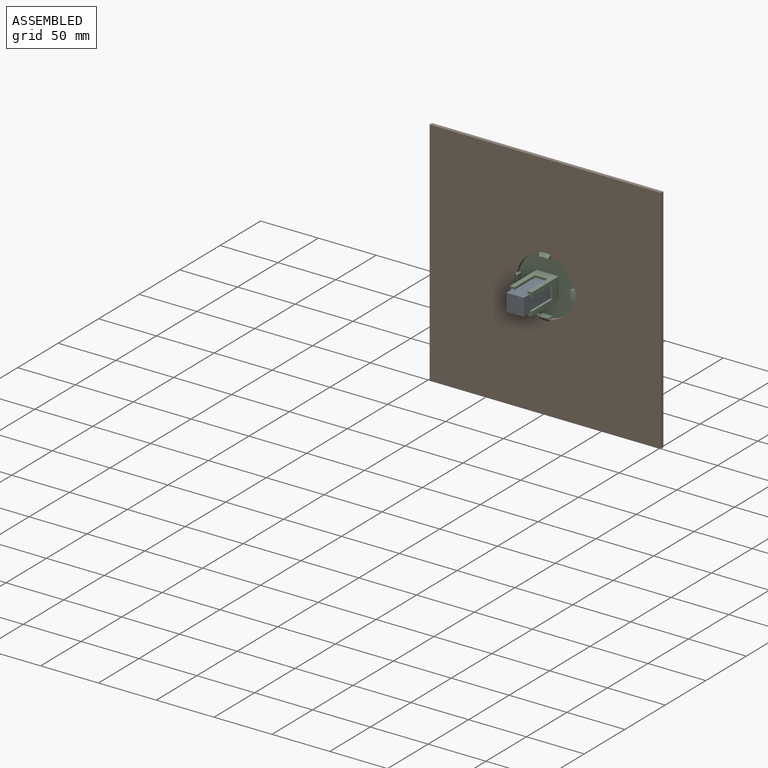
[diagram: assembled view]
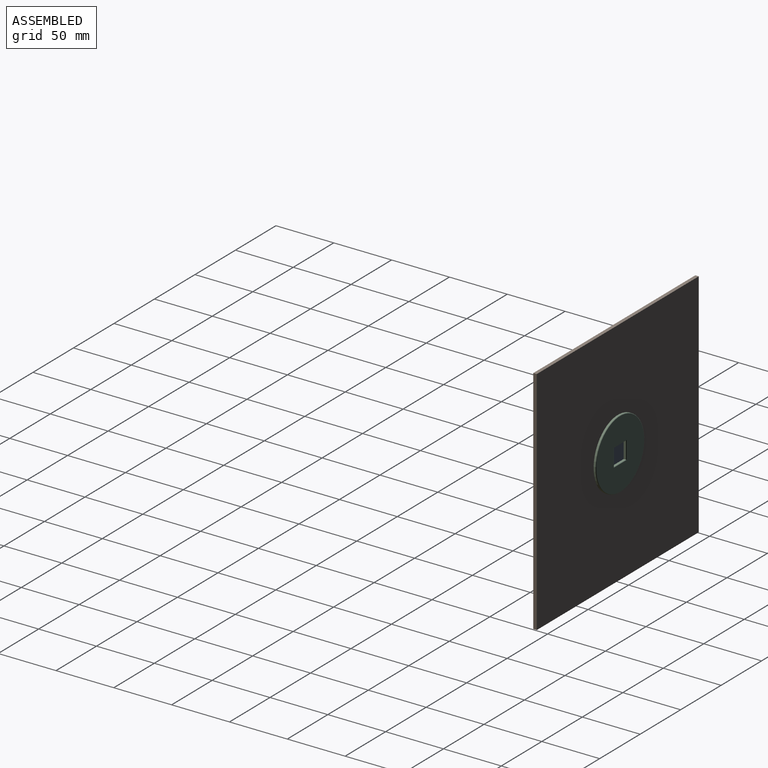
[diagram: assembled view, second angle]
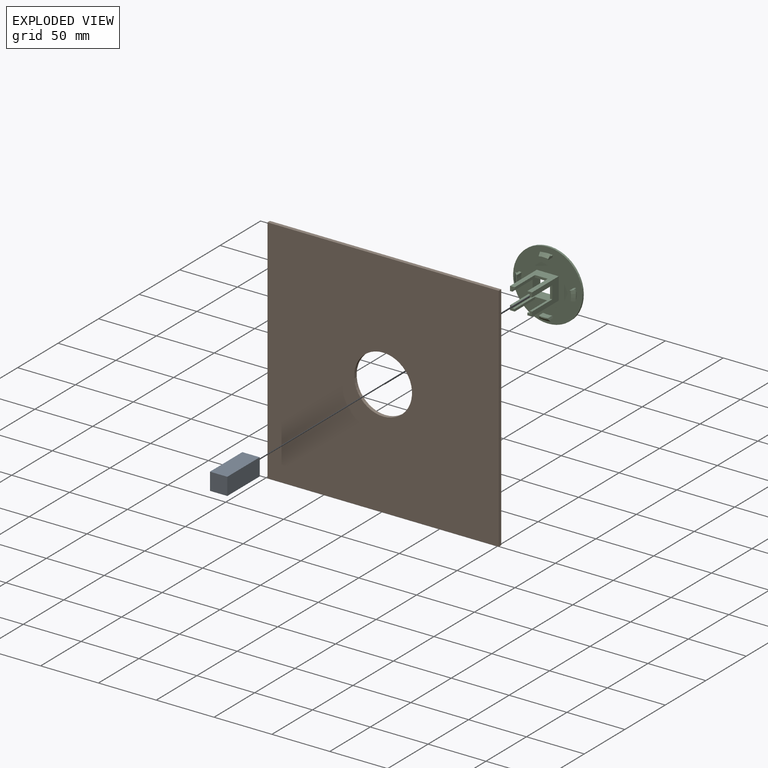
[diagram: exploded view]
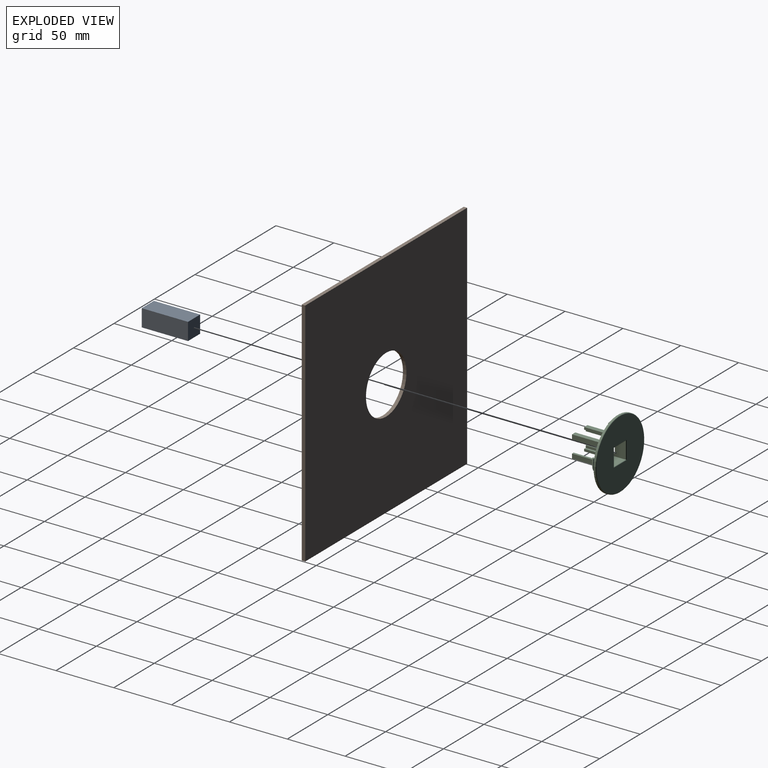
[diagram: exploded view, second angle]
ASSEMBLY  parts=3 mates=2
PART A: 6 faces, bbox 15x40x15 mm
  f0: plane 40x15mm, normal (0,0,-1), area 600mm2, adj f1,f3,f4,f5
  f1: plane 40x15mm, normal (1,0,0), area 600mm2, adj f0,f2,f4,f5
  f2: plane 40x15mm, normal (0,0,1), area 600mm2, adj f1,f3,f4,f5
  f3: plane 40x15mm, normal (-1,0,0), area 600mm2, adj f0,f2,f4,f5
  f4: plane 15x15mm, normal (0,-1,0), area 225mm2, adj f0,f1,f2,f3
  f5: plane 15x15mm, normal (0,1,0), area 225mm2, adj f0,f1,f2,f3
PART B: 7 faces, bbox 200x3x200 mm
  f0: plane 200x3mm, normal (1,0,0), area 600mm2, adj f1,f3,f5,f6
  f1: plane 200x3mm, normal (0,0,1), area 600mm2, adj f0,f2,f5,f6
  f2: plane 200x3mm, normal (-1,0,0), area 600mm2, adj f1,f3,f5,f6
  f3: plane 200x3mm, normal (0,0,-1), area 600mm2, adj f0,f2,f5,f6
  f4: cylinder r=25mm len=50mm, axis (0,1,0), area 471.2mm2, adj f5,f6
  f5: plane 200x200mm, normal (0,-1,0), area 38036.5mm2, adj f0,f1,f2,f3,f4
  f6: plane 200x200mm, normal (0,1,0), area 38036.5mm2, adj f0,f1,f2,f3,f4
PART C: 60 faces, bbox 64.9x35x64.9 mm
  f0: plane 60x60mm, normal (0,-1,0), area 2399.4mm2, adj f2,f7,f8,f11,f18,f35,f36,f37
  f1: plane 59x59mm, normal (0,1,0), area 2478mm2, adj f27,f28,f29,f30,f31
  f2: cylinder r=30mm len=60mm, axis (0,1,0), area 282.7mm2, adj f0,f31
  f3: plane 25x2mm, normal (-1,0,0), area 50mm2, adj f4,f8,f9,f23
  f4: plane 34.5x15mm, normal (0,0,-1), area 242.5mm2, adj f3,f5,f9,f16,f17,f19,f23,f30
  f5: plane 34.5x15mm, normal (-1,0,0), area 242.5mm2, adj f4,f6,f9,f12,f13,f14,f24,f29
  f6: plane 25x2mm, normal (0,0,-1), area 50mm2, adj f5,f7,f9,f24
  f7: plane 33x19mm, normal (1,0,0), area 352mm2, adj f0,f6,f8,f9,f11,f12,f14,f24
  f8: plane 33x19mm, normal (0,0,1), area 352mm2, adj f0,f3,f7,f9,f17,f18,f19,f23
  f9: plane 4x4mm, normal (0,-1,0), area 12mm2, adj f3,f4,f5,f6,f7,f8
  f10: plane 25x2mm, normal (-1,0,0), area 50mm2, adj f11,f13,f14,f25
  f11: plane 33x19mm, normal (0,0,-1), area 352mm2, adj f0,f7,f10,f14,f18,f21,f22,f25
  f12: plane 25x2mm, normal (0,0,1), area 50mm2, adj f5,f7,f14,f24
  f13: plane 34.5x15mm, normal (0,0,1), area 242.5mm2, adj f5,f10,f14,f16,f21,f22,f25,f27
  f14: plane 4x4mm, normal (0,-1,0), area 12mm2, adj f5,f7,f10,f11,f12,f13
  f15: plane 25x2mm, normal (0,0,-1), area 50mm2, adj f16,f18,f19,f26
  f16: plane 34.5x15mm, normal (1,0,0), area 242.5mm2, adj f4,f13,f15,f19,f20,f22,f26,f28
  f17: plane 25x2mm, normal (1,0,0), area 50mm2, adj f4,f8,f19,f23
  f18: plane 33x19mm, normal (-1,0,0), area 352mm2, adj f0,f8,f11,f15,f19,f20,f22,f26
  f19: plane 4x4mm, normal (0,-1,0), area 12mm2, adj f4,f8,f15,f16,f17,f18
  f20: plane 25x2mm, normal (0,0,1), area 50mm2, adj f16,f18,f22,f26
  f21: plane 25x2mm, normal (1,0,0), area 50mm2, adj f11,f13,f22,f25
  f22: plane 4x4mm, normal (0,-1,0), area 12mm2, adj f11,f13,f16,f18,f20,f21
  f23: plane 11x2mm, normal (0,-1,0), area 22mm2, adj f3,f4,f8,f17
  f24: plane 11x2mm, normal (0,-1,0), area 22mm2, adj f5,f6,f7,f12
  f25: plane 11x2mm, normal (0,-1,0), area 22mm2, adj f10,f11,f13,f21
  f26: plane 11x2mm, normal (0,-1,0), area 22mm2, adj f15,f16,f18,f20
  f27: cylinder r=0.5mm len=16mm, axis (-1,0,0), area 12.1mm2, adj f1,f13,f28,f29
  f28: cylinder r=0.5mm len=16mm, axis (0,0,1), area 12.1mm2, adj f1,f16,f27,f30
  f29: cylinder r=0.5mm len=16mm, axis (0,0,-1), area 12.1mm2, adj f1,f5,f27,f30
  f30: cylinder r=0.5mm len=16mm, axis (1,0,0), area 12.1mm2, adj f1,f4,f28,f29
  f31: torus R=29.5mm, axis (0,-1,0), area 147.1mm2, adj f1,f2
  f32: plane 8.34x1.35mm, normal (0,-1,0), area 8.2mm2, adj f33,f36,f37,f38
  f33: cone r=24mm half-angle=45deg, axis (0,1,0), area 31.2mm2, adj f32,f34,f37,f38
  f34: plane 9.2x1.88mm, normal (0,1,0), area 13.5mm2, adj f33,f35,f37,f38
  f35: cylinder r=25mm len=8.68mm, axis (0,-1,0), area 26.2mm2, adj f0,f34,f37,f38
  f36: cylinder r=23mm len=7.99mm, axis (0,-1,0), area 44.2mm2, adj f0,f32,f37,f38
  f37: plane 5.5x3.45mm, normal (-0.17,0,-0.98), area 11.6mm2, adj f0,f32,f33,f34,f35,f36
  f38: plane 5.5x3.45mm, normal (-0.17,0,0.98), area 11.6mm2, adj f0,f32,f33,f34,f35,f36
  f39: plane 8.34x1.35mm, normal (0,-1,0), area 8.2mm2, adj f40,f43,f44,f45
  f40: cone r=24mm half-angle=45deg, axis (0,1,0), area 31.2mm2, adj f39,f41,f44,f45
  f41: plane 9.2x1.88mm, normal (0,1,0), area 13.5mm2, adj f40,f42,f44,f45
  f42: cylinder r=25mm len=8.68mm, axis (0,-1,0), area 26.2mm2, adj f0,f41,f44,f45
  f43: cylinder r=23mm len=7.99mm, axis (0,-1,0), area 44.2mm2, adj f0,f39,f44,f45
  f44: plane 5.5x3.45mm, normal (-0.98,0,0.17), area 11.6mm2, adj f0,f39,f40,f41,f42,f43
  f45: plane 5.5x3.45mm, normal (0.98,0,0.17), area 11.6mm2, adj f0,f39,f40,f41,f42,f43
  f46: plane 8.34x1.35mm, normal (0,-1,0), area 8.2mm2, adj f47,f50,f51,f52
  f47: cone r=24mm half-angle=45deg, axis (0,1,0), area 31.2mm2, adj f46,f48,f51,f52
  f48: plane 9.2x1.88mm, normal (0,1,0), area 13.5mm2, adj f47,f49,f51,f52
  f49: cylinder r=25mm len=8.68mm, axis (0,-1,0), area 26.2mm2, adj f0,f48,f51,f52
  f50: cylinder r=23mm len=7.99mm, axis (0,-1,0), area 44.2mm2, adj f0,f46,f51,f52
  f51: plane 5.5x3.45mm, normal (0.17,0,0.98), area 11.6mm2, adj f0,f46,f47,f48,f49,f50
  f52: plane 5.5x3.45mm, normal (0.17,0,-0.98), area 11.6mm2, adj f0,f46,f47,f48,f49,f50
  f53: plane 8.34x1.35mm, normal (0,-1,0), area 8.2mm2, adj f54,f57,f58,f59
  f54: cone r=24mm half-angle=45deg, axis (0,1,0), area 31.2mm2, adj f53,f55,f58,f59
  f55: plane 9.2x1.88mm, normal (0,1,0), area 13.5mm2, adj f54,f56,f58,f59
  f56: cylinder r=25mm len=8.68mm, axis (0,-1,0), area 26.2mm2, adj f0,f55,f58,f59
  f57: cylinder r=23mm len=7.99mm, axis (0,-1,0), area 44.2mm2, adj f0,f53,f58,f59
  f58: plane 5.5x3.45mm, normal (0.98,0,-0.17), area 11.6mm2, adj f0,f53,f54,f55,f56,f57
  f59: plane 5.5x3.45mm, normal (-0.98,0,-0.17), area 11.6mm2, adj f0,f53,f54,f55,f56,f57
PLACE A t=(6.6,45.08,40.87)mm
PLACE B t=(6.6,45.28,40.87)mm
PLACE C t=(6.6,47.38,40.87)mm
MATE slider B.f4 <-> C.f2  axis (0,1,0) through (6.6,45.28,40.87)mm
MATE cylindrical A.f5 <-> C.f2  axis (0,1,0) through (6.6,45.08,40.87)mm
